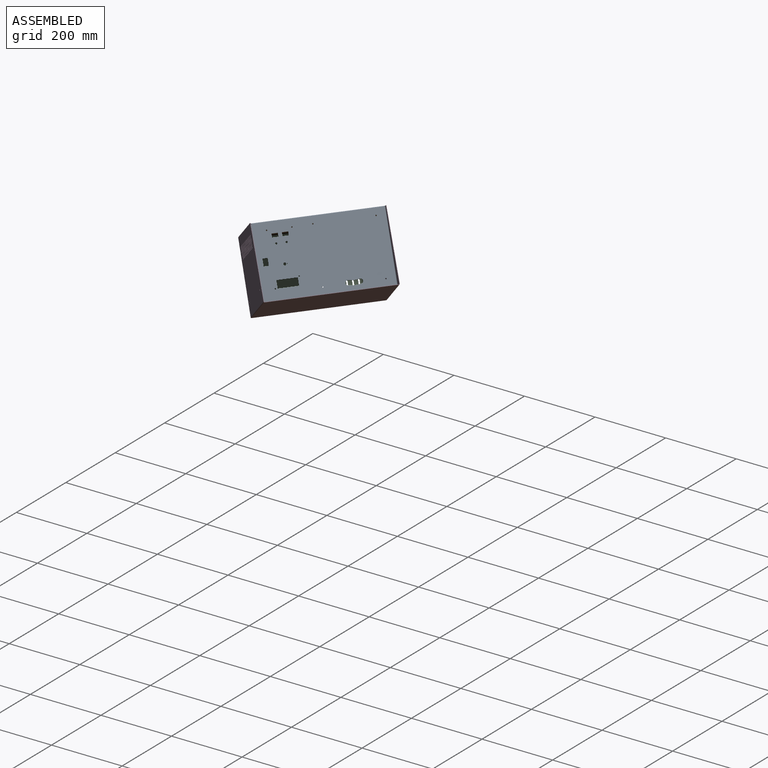
[diagram: assembled view]
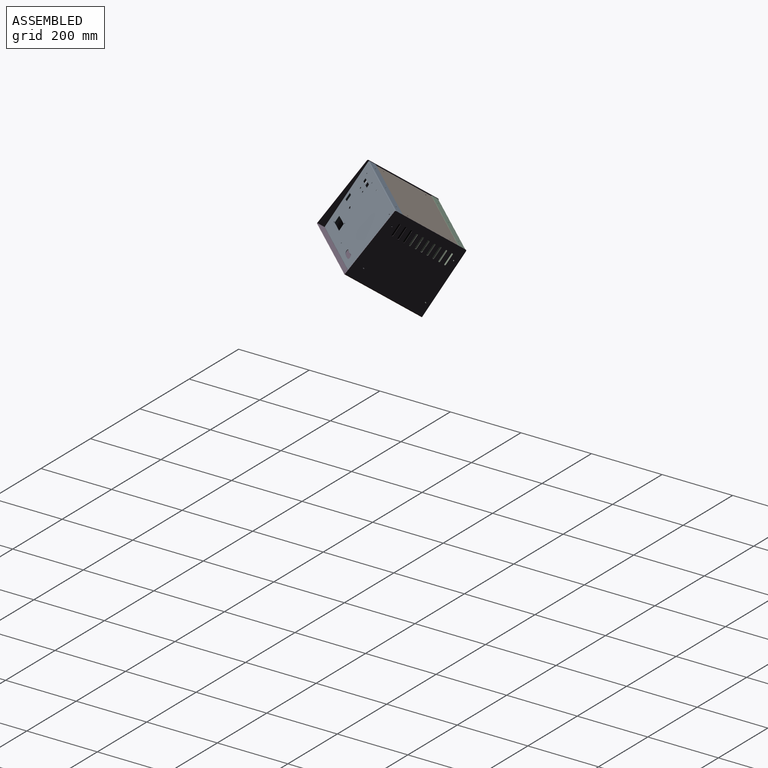
[diagram: assembled view, second angle]
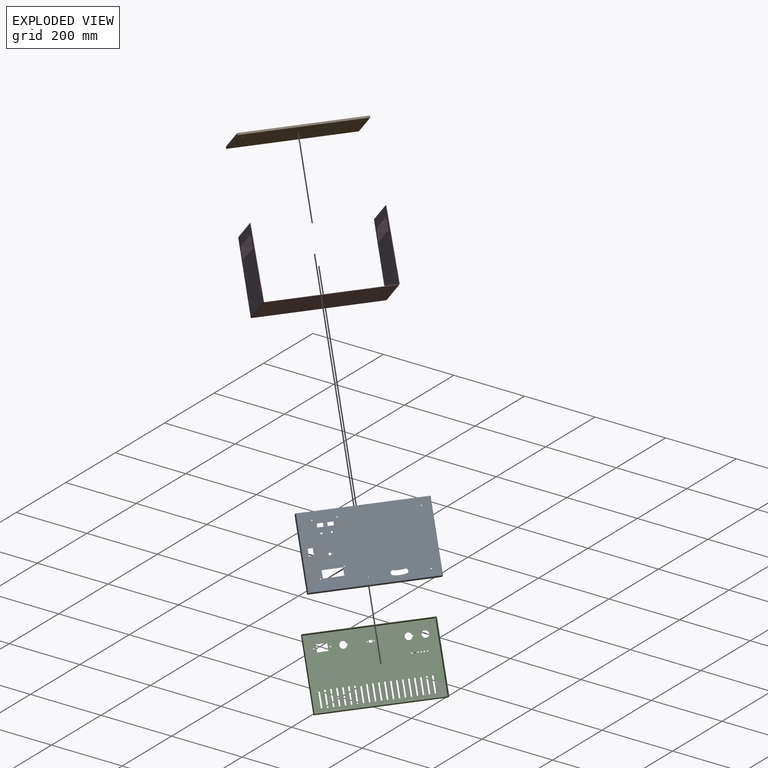
[diagram: exploded view]
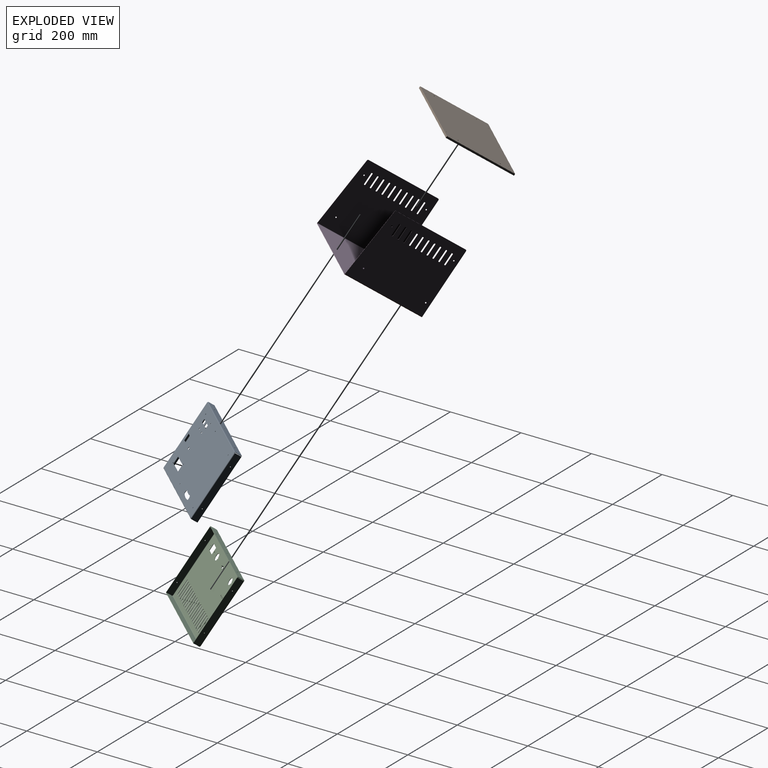
[diagram: exploded view, second angle]
FCSTD DOCUMENT  (FreeCAD 1.0R39109 (Git))
Label: +++Sestava_BEDNY_4D_320mm_5mm
License: All rights reserved
LicenseURL: http://en.wikipedia.org/wiki/All_rights_reserved
objects: App::Link×4, App::FeaturePython×4, Assembly::JointGroup×1, Assembly::AssemblyObject×1
EXTERNAL_REF file=SEVER_BEDNA_PP_320mm_DVE_PACKY.FCStd obj=Body
EXTERNAL_REF file=SEVER_BEDNA_DNO_5mm.FCStd obj=Body
EXTERNAL_REF file=SEVER_BEDNA_ZP_320mm.FCStd obj=Body
EXTERNAL_REF file=SEVER_BEDNA_VRSEK_320mm.FCStd obj=Body

FEATURE [App::Link] Body  label="předek"
  LinkPlacement = pos=(28.0905,79.9433,18.6275) rot=(-0.373711,0.889261,-0.263734;2.86418rad)
  LinkedObject = -> <external SEVER_BEDNA_PP_320mm_DVE_PACKY.FCStd>#Body
  Placement = pos=(28.0905,79.9433,18.6275) rot=(-0.373711,0.889261,-0.263734;2.86418rad)
FEATURE [App::Link] Body001  label="dno 5mm"
  LinkPlacement = pos=(-109.162,126.404,33.6696) rot=(-0.551479,-0.291912,0.781446;0.986831rad)
  LinkedObject = -> <external SEVER_BEDNA_DNO_5mm.FCStd>#Body
  Placement = pos=(-109.162,126.404,33.6696) rot=(-0.551479,-0.291912,0.781446;0.986831rad)
FEATURE [App::FeaturePython] GroundedJoint  # Assembly grounded joint (typed FeaturePython)
  ObjectToGround = -> Body001
  Placement = pos=(-109.162,126.404,33.6696) rot=(-0.551479,-0.291912,0.781446;0.986831rad)
FEATURE [App::FeaturePython] Joint  label="Pevné"  # Assembly joint (typed FeaturePython)
  Activated = true
  AngleMax = 0
  AngleMin = 0
  Detach1 = false
  Detach2 = false
  Distance = 0
  Distance2 = 0
  EnableAngleMax = false
  EnableAngleMin = false
  EnableLengthMax = false
  EnableLengthMin = false
  JointType = 0 (Fixed)
  LengthMax = 0
  LengthMin = 0
  Offset2 = pos=(0,0,0) rot=(0,0,1;3.14159rad)
  Placement1 = pos=(180,9.5,-94) rot=(0,0,1;0rad)
  Placement2 = pos=(-120,-89,5) rot=(0,0,1;3.14159rad)
  Reference1 = -> Assembly [Body.Edge132,Body.Edge132]
  Reference2 = -> Assembly [Body001.Edge23,Body001.Edge23]
FEATURE [App::Link] Body002  label="zadek"
  LinkPlacement = pos=(-12.3072,35.6084,16.4601) rot=(-0.373711,0.889261,-0.263734;2.86418rad)
  LinkedObject = -> <external SEVER_BEDNA_ZP_320mm.FCStd>#Body
  Placement = pos=(-12.3072,35.6084,16.4601) rot=(-0.373711,0.889261,-0.263734;2.86418rad)
FEATURE [App::FeaturePython] Joint001  label="Pevné001"  # Assembly joint (typed FeaturePython)
  Activated = true
  AngleMax = 0
  AngleMin = 0
  Detach1 = false
  Detach2 = false
  Distance = 0
  Distance2 = 0
  EnableAngleMax = false
  EnableAngleMin = false
  EnableLengthMax = false
  EnableLengthMin = false
  JointType = 0 (Fixed)
  LengthMax = 0
  LengthMin = 0
  Offset2 = pos=(0,0,0) rot=(0,0,1;3.14159rad)
  Placement1 = pos=(120,189,-94) rot=(0,0,1;0rad)
  Placement2 = pos=(-120,89,5) rot=(0,0,1;3.14159rad)
  Reference1 = -> Assembly [Body002.Edge330,Body002.Edge330]
  Reference2 = -> Assembly [Body001.Edge29,Body001.Edge29]
FEATURE [App::Link] Body003  label="vršek"
  LinkPlacement = pos=(-22.9234,55.3408,-112.82) rot=(0.912395,0.383433,0.143233;2.61306rad)
  LinkedObject = -> <external SEVER_BEDNA_VRSEK_320mm.FCStd>#Body
  Placement = pos=(-22.9234,55.3408,-112.82) rot=(0.912395,0.383433,0.143233;2.61306rad)
FEATURE [App::FeaturePython] Joint002  label="Pevné002"  # Assembly joint (typed FeaturePython)
  Activated = true
  AngleMax = 0
  AngleMin = 0
  Detach1 = false
  Detach2 = false
  Distance = 0
  Distance2 = 0
  EnableAngleMax = false
  EnableAngleMin = false
  EnableLengthMax = false
  EnableLengthMin = false
  JointType = 0 (Fixed)
  LengthMax = 0
  LengthMin = 0
  Placement1 = pos=(-160.5,-98,-154) rot=(0.57735,-0.57735,-0.57735;2.0944rad)
  Placement2 = pos=(160,188.5,-59) rot=(0.57735,0.57735,0.57735;2.0944rad)
  Reference1 = -> Assembly [Body003.Edge10,Body003.Edge10]
  Reference2 = -> Assembly [Body002.Edge387,Body002.Edge387]
FEATURE [Assembly::JointGroup] Joints
  Group = -> [GroundedJoint,Joint,Joint001,Joint002]
FEATURE [Assembly::AssemblyObject] Assembly
  Group = -> [Joints,Body,Body001,GroundedJoint,Joint,Body002,Joint001,Body003,Joint002]
  Origin = -> Origin
  Type = Assembly

RESOLVED EXTERNAL PARTS (link-assembly join: the EXTERNAL_REF files above that resolve inside this repo's crawl, each included once):
---- part SEVER_BEDNA_DNO_5mm.FCStd = doc fcstd_07ab9bba42f1 ----
FCSTD DOCUMENT  (FreeCAD 1.0R39285 (Git))
Label: SEVER_BEDNA_DNO_5mm
License: All rights reserved
LicenseURL: http://en.wikipedia.org/wiki/All_rights_reserved
objects: TechDraw::DrawViewDimension×11, Sketcher::SketchObject×3, PartDesign::Pocket×2, PartDesign::Pad×1, PartDesign::Body×1, TechDraw::DrawSVGTemplate×1, TechDraw::DrawProjGroupItem×1, TechDraw::DrawPage×1
note: 34 computed .brp shape members not serialized (recipe doc carries the construction recipe); baked Part::Feature solids carry a one-line shape summary decoded from their .brp

FEATURE [Sketcher::SketchObject] Sketch
  ArcFitTolerance = 1e-06
  AttachmentSupport = -> [XY_Plane]
  FullyConstrained = true
  MakeInternals = false
  MapMode = 5
  sketch-geometry (4):
    g0: LineSegment StartX=-157.5 StartY=97 StartZ=0 EndX=-157.5 EndY=-97 EndZ=0
    g1: LineSegment StartX=-157.5 StartY=-97 StartZ=0 EndX=157.5 EndY=-97 EndZ=0
    g2: LineSegment StartX=157.5 StartY=-97 StartZ=0 EndX=157.5 EndY=97 EndZ=0
    g3: LineSegment StartX=157.5 StartY=97 StartZ=0 EndX=-157.5 EndY=97 EndZ=0
  constraints (11):
    c: Coincident(g0,g1)
    c: Coincident(g1,g2)
    c: Coincident(g2,g3)
    c: Coincident(g3,g0)
    c: Vertical(g0)
    c: Vertical(g2)
    c: Horizontal(g1)
    c: Horizontal(g3)
    c: Symmetric(g0,g1,g-1)
    c: DistanceX(g3,g3) = 315
    c: Distance(g0,g0) = 194
FEATURE [PartDesign::Pad] Pad
  Direction = (0,0,1)
  Length = 5
  Length2 = 10
  Profile = -> Sketch
  ReferenceAxis = -> Sketch [N_Axis]
  Suppressed = false
  Type = 0
FEATURE [Sketcher::SketchObject] Sketch001
  ArcFitTolerance = 1e-06
  AttachmentSupport = -> [Pad]
  ExternalGeometry = -> [Pad]
  FullyConstrained = true
  MakeInternals = false
  MapMode = 5
  Placement = pos=(0,0,5) rot=(0,0,1;0rad)
  sketch-geometry (7):
    g0: Circle CenterX=-120 CenterY=89 CenterZ=0 NormalX=0 NormalY=0 NormalZ=1 AngleXU=0 Radius=1
    g1: Circle CenterX=0 CenterY=89 CenterZ=0 NormalX=0 NormalY=0 NormalZ=1 AngleXU=0 Radius=1
    g2: Circle CenterX=120 CenterY=89 CenterZ=0 NormalX=0 NormalY=0 NormalZ=1 AngleXU=0 Radius=1
    g3: Circle CenterX=-120 CenterY=-89 CenterZ=0 NormalX=0 NormalY=0 NormalZ=1 AngleXU=0 Radius=1
    g4: Circle CenterX=0 CenterY=-89 CenterZ=0 NormalX=0 NormalY=0 NormalZ=1 AngleXU=0 Radius=1
    g5: Circle CenterX=120 CenterY=-89 CenterZ=0 NormalX=0 NormalY=0 NormalZ=1 AngleXU=0 Radius=1
    g6: LineSegment [constr] StartX=-157.5 StartY=89 StartZ=0 EndX=157.5 EndY=89 EndZ=0
  constraints (20):
    c: Equal(g0,g1)
    c: Equal(g3,g4)
    c: Equal(g5,g2)
    c: Horizontal(g0,g1)
    c: Horizontal(g4,g3)
    c: Vertical(g4,g1)
    c: Vertical(g2,g5)
    c: Horizontal(g6)
    c: Symmetric(g0,g3,g-1)
    c: DistanceX(g3,g4) = 120
    c: Diameter(g3) = 2
    c: Symmetric(g0,g2,g-2)
    c: PointOnObject(g4,g-2)
    c: Equal(g4,g5)
    c: Equal(g0,g2)
    c: Horizontal(g5,g3)
    c: PointOnObject(g0,g6)
    c: PointOnObject(g6,g-3)
    c: PointOnObject(g6,g-4)
    c: DistanceY(g6,g-3) = 8
FEATURE [PartDesign::Pocket] Pocket
  BaseFeature = -> Pad
  Direction = (0,0,-1)
  Length = 5
  Length2 = 5
  Profile = -> Sketch001
  ReferenceAxis = -> Sketch001 [N_Axis]
  Refine = true
  Suppressed = false
  Type = 1
FEATURE [Sketcher::SketchObject] Sketch002
  ArcFitTolerance = 1e-06
  AttachmentSupport = -> [Pocket]
  FullyConstrained = true
  MakeInternals = false
  MapMode = 5
  Placement = pos=(0,0,5) rot=(0,0,1;0rad)
  sketch-geometry (8):
    g0: Circle CenterX=-140 CenterY=60 CenterZ=0 NormalX=0 NormalY=0 NormalZ=1 AngleXU=0 Radius=2.25
    g1: Circle CenterX=140 CenterY=60 CenterZ=0 NormalX=0 NormalY=0 NormalZ=1 AngleXU=0 Radius=2.25
    g2: Circle CenterX=-140 CenterY=-60 CenterZ=0 NormalX=0 NormalY=0 NormalZ=1 AngleXU=0 Radius=2.25
    g3: Circle CenterX=140 CenterY=-60 CenterZ=0 NormalX=0 NormalY=0 NormalZ=1 AngleXU=0 Radius=2.25
    g4: Circle [constr] CenterX=-140 CenterY=60 CenterZ=0 NormalX=0 NormalY=0 NormalZ=1 AngleXU=0 Radius=10
    g5: Circle [constr] CenterX=-140 CenterY=-60 CenterZ=0 NormalX=0 NormalY=0 NormalZ=1 AngleXU=0 Radius=10
    g6: Circle [constr] CenterX=140 CenterY=60 CenterZ=0 NormalX=0 NormalY=0 NormalZ=1 AngleXU=0 Radius=10
    g7: Circle [constr] CenterX=140 CenterY=-60 CenterZ=0 NormalX=0 NormalY=0 NormalZ=1 AngleXU=0 Radius=10
  constraints (18):
    c: Symmetric(g0,g2,g-1)
    c: Symmetric(g0,g1,g-2)
    c: Horizontal(g3,g2)
    c: Vertical(g1,g3)
    c: Equal(g0,g2)
    c: Equal(g2,g1)
    c: Equal(g1,g3)
    c: DistanceY(g2,g0) = 120
    c: DistanceX(g0,g1) = 280
    c: Diameter(g0) = 4.5
    c: Coincident(g4,g0)
    c: Diameter(g4) = 20
    c: Coincident(g5,g2)
    c: Coincident(g6,g1)
    c: Coincident(g7,g3)
    c: Equal(g4,g5)
    c: Equal(g5,g6)
    c: Equal(g6,g7)
FEATURE [PartDesign::Pocket] Pocket001
  BaseFeature = -> Pocket
  Direction = (0,0,-1)
  Length = 5
  Length2 = 5
  Profile = -> Sketch002
  ReferenceAxis = -> Sketch002 [N_Axis]
  Refine = true
  Suppressed = false
  Type = 1
FEATURE [PartDesign::Body] Body
  AllowCompound = false
  Group = -> [Sketch,Pad,Sketch001,Sketch002,Pocket,Pocket001]
  Origin = -> Origin
  Tip = -> Pocket001
FEATURE [TechDraw::DrawSVGTemplate] Template001  label="Šablona001"
  Height = 297
  Orientation = 1
  Template = <userpath>/AppData/FreeCAD_1.0.0-conda-Windows-x86_64-py311/data/Mod/TechDraw/Templates/A3_Landscape_blank.svg
  Width = 420
FEATURE [TechDraw::DrawProjGroupItem] View
  CoarseView = false
  Direction = (0,0,-1)
  Focus = 100
  HardHidden = false
  IsoCount = 0
  IsoHidden = false
  IsoVisible = false
  LockPosition = false
  Perspective = false
  Rotation = 0
  RotationVector = (1,0,0)
  ScaleType = 0
  ScrubCount = 1
  SeamHidden = false
  SeamVisible = false
  SmoothHidden = false
  SmoothVisible = true
  Source = -> [Body]
  Type = 0
  X = 215.134
  XDirection = (1,0,0)
  Y = 125.201
FEATURE [TechDraw::DrawViewDimension] Dimension  label="Rozměr"
  AngleOverride = false
  Arbitrary = false
  ArbitraryTolerances = false
  BoxCorners = (2) [(-157.5,-97,0),(157.5,97,0)]
  EqualTolerance = true
  ExtensionAngle = 0
  FormatSpec = %.2w
  FormatSpecOverTolerance = %+.2w
  FormatSpecUnderTolerance = %+.2w
  Inverted = false
  LineAngle = 0
  LockPosition = false
  MeasureType = 1
  OverTolerance = 0
  References2D = -> [View]
  Rotation = 0
  ScaleType = 0
  TheoreticalExact = false
  Type = 1
  UnderTolerance = 0
  X = 0
  Y = 155.045
FEATURE [TechDraw::DrawViewDimension] Dimension001  label="Rozměr001"
  AngleOverride = false
  Arbitrary = false
  ArbitraryTolerances = false
  BoxCorners = (2) [(-157.5,-97,0),(157.5,97,0)]
  EqualTolerance = true
  ExtensionAngle = 0
  FormatSpec = %.2w
  FormatSpecOverTolerance = %+.2w
  FormatSpecUnderTolerance = %+.2w
  Inverted = false
  LineAngle = 0
  LockPosition = false
  MeasureType = 1
  OverTolerance = 0
  References2D = -> [View]
  Rotation = 0
  ScaleType = 0
  TheoreticalExact = false
  Type = 2
  UnderTolerance = 0
  X = -193.419
  Y = 0
FEATURE [TechDraw::DrawViewDimension] Dimension002  label="Rozměr002"
  AngleOverride = false
  Arbitrary = false
  ArbitraryTolerances = false
  BoxCorners = (2) [(-157.5,-97,0),(157.5,97,0)]
  EqualTolerance = true
  ExtensionAngle = 0
  FormatSpec = %.2w
  FormatSpecOverTolerance = %+.2w
  FormatSpecUnderTolerance = %+.2w
  Inverted = false
  LineAngle = 0
  LockPosition = false
  MeasureType = 1
  OverTolerance = 0
  References2D = -> [View]
  Rotation = 0
  ScaleType = 0
  TheoreticalExact = false
  Type = 1
  UnderTolerance = 0
  X = -60
  Y = 114.567
FEATURE [TechDraw::DrawViewDimension] Dimension003  label="Rozměr003"
  AngleOverride = false
  Arbitrary = false
  ArbitraryTolerances = false
  BoxCorners = (2) [(-157.5,-97,0),(157.5,97,0)]
  EqualTolerance = true
  ExtensionAngle = 0
  FormatSpec = %.2w
  FormatSpecOverTolerance = %+.2w
  FormatSpecUnderTolerance = %+.2w
  Inverted = false
  LineAngle = 0
  LockPosition = false
  MeasureType = 1
  OverTolerance = 0
  References2D = -> [View]
  Rotation = 0
  ScaleType = 0
  TheoreticalExact = false
  Type = 1
  UnderTolerance = 0
  X = 54.5624
  Y = 114.567
FEATURE [TechDraw::DrawViewDimension] Dimension004  label="Rozměr004"
  AngleOverride = false
  Arbitrary = false
  ArbitraryTolerances = false
  BoxCorners = (2) [(-157.5,-97,0),(157.5,97,0)]
  EqualTolerance = true
  ExtensionAngle = 0
  FormatSpec = %.2w
  FormatSpecOverTolerance = %+.2w
  FormatSpecUnderTolerance = %+.2w
  Inverted = false
  LineAngle = 0
  LockPosition = false
  MeasureType = 1
  OverTolerance = 0
  References2D = -> [View]
  Rotation = 0
  ScaleType = 0
  TheoreticalExact = false
  Type = 1
  UnderTolerance = 0
  X = 0
  Y = 31.1919
FEATURE [TechDraw::DrawViewDimension] Dimension007  label="Rozměr007"
  AngleOverride = false
  Arbitrary = true
  ArbitraryTolerances = false
  BoxCorners = (2) [(-157.5,-97,0),(157.5,97,0)]
  EqualTolerance = true
  ExtensionAngle = 0
  FormatSpec = 6x M3
  FormatSpecOverTolerance = %+.2w
  FormatSpecUnderTolerance = %+.2w
  Inverted = false
  LineAngle = 0
  LockPosition = false
  MeasureType = 1
  OverTolerance = 0
  References2D = -> [View]
  Rotation = 0
  ScaleType = 0
  TheoreticalExact = false
  Type = 5
  UnderTolerance = 0
  X = 88.9416
  Y = 84.6774
FEATURE [TechDraw::DrawViewDimension] Dimension008  label="Rozměr008"
  AngleOverride = false
  Arbitrary = true
  ArbitraryTolerances = false
  BoxCorners = (2) [(-157.5,-97,0),(157.5,97,0)]
  EqualTolerance = true
  ExtensionAngle = 0
  FormatSpec = 4x M4
  FormatSpecOverTolerance = %+.2w
  FormatSpecUnderTolerance = %+.2w
  Inverted = false
  LineAngle = 0
  LockPosition = false
  MeasureType = 1
  OverTolerance = 0
  References2D = -> [View]
  Rotation = 0
  ScaleType = 0
  TheoreticalExact = false
  Type = 5
  UnderTolerance = 0
  X = 100.518
  Y = 50.5803
FEATURE [TechDraw::DrawViewDimension] Dimension009  label="Rozměr009"
  AngleOverride = false
  Arbitrary = false
  ArbitraryTolerances = false
  BoxCorners = (2) [(-157.5,-97,0),(157.5,97,0)]
  EqualTolerance = true
  ExtensionAngle = 0
  FormatSpec = %.2w
  FormatSpecOverTolerance = %+.2w
  FormatSpecUnderTolerance = %+.2w
  Inverted = false
  LineAngle = 0
  LockPosition = false
  MeasureType = 1
  OverTolerance = 0
  References2D = -> [View]
  Rotation = 0
  ScaleType = 0
  TheoreticalExact = false
  Type = 0
  UnderTolerance = 0
  X = -170.244
  Y = 93
FEATURE [TechDraw::DrawViewDimension] Dimension010  label="Rozměr010"
  AngleOverride = false
  Arbitrary = false
  ArbitraryTolerances = false
  BoxCorners = (2) [(-157.5,-97,0),(157.5,97,0)]
  EqualTolerance = true
  ExtensionAngle = 0
  FormatSpec = %.2w
  FormatSpecOverTolerance = %+.2w
  FormatSpecUnderTolerance = %+.2w
  Inverted = false
  LineAngle = 0
  LockPosition = false
  MeasureType = 1
  OverTolerance = 0
  References2D = -> [View]
  Rotation = 0
  ScaleType = 0
  TheoreticalExact = false
  Type = 0
  UnderTolerance = 0
  X = -179.841
  Y = 78.5
FEATURE [TechDraw::DrawViewDimension] Dimension011  label="Rozměr011"
  AngleOverride = false
  Arbitrary = false
  ArbitraryTolerances = false
  BoxCorners = (2) [(-157.5,-97,0),(157.5,97,0)]
  EqualTolerance = true
  ExtensionAngle = 0
  FormatSpec = %.2w
  FormatSpecOverTolerance = %+.2w
  FormatSpecUnderTolerance = %+.2w
  Inverted = false
  LineAngle = 0
  LockPosition = false
  MeasureType = 1
  OverTolerance = 0
  References2D = -> [View]
  Rotation = 0
  ScaleType = 0
  TheoreticalExact = false
  Type = 0
  UnderTolerance = 0
  X = -57.0655
  Y = 135.635
FEATURE [TechDraw::DrawViewDimension] Dimension012  label="Rozměr012"
  AngleOverride = false
  Arbitrary = false
  ArbitraryTolerances = false
  BoxCorners = (2) [(-157.5,-97,0),(157.5,97,0)]
  EqualTolerance = true
  ExtensionAngle = 0
  FormatSpec = %.2w
  FormatSpecOverTolerance = %+.2w
  FormatSpecUnderTolerance = %+.2w
  Inverted = false
  LineAngle = 0
  LockPosition = false
  MeasureType = 1
  OverTolerance = 0
  References2D = -> [View]
  Rotation = 0
  ScaleType = 0
  TheoreticalExact = false
  Type = 0
  UnderTolerance = 0
  X = 65.3695
  Y = 135.635
FEATURE [TechDraw::DrawPage] Page001  label="Stránka001"
  KeepUpdated = true
  NextBalloonIndex = 1
  ProjectionType = 0
  Template = -> Template001
  Views = -> [View,Dimension,Dimension001,Dimension002,Dimension003,Dimension004,Dimension007,Dimension008,Dimension009,Dimension010,Dimension011,Dimension012]
---- part SEVER_BEDNA_PP_320mm_DVE_PACKY.FCStd = doc fcstd_56e4bdcb5f2a ----
FCSTD DOCUMENT  (FreeCAD 1.0R39285 (Git))
Label: SEVER_BEDNA_PP_320mm_DVE_PACKY
License: All rights reserved
LicenseURL: http://en.wikipedia.org/wiki/All_rights_reserved
objects: Sketcher::SketchObject×3, PartDesign::FeaturePython×3, PartDesign::Pocket×2, PartDesign::Pad×1, TechDraw::DrawSVGTemplate×1, TechDraw::DrawProjGroupItem×1, TechDraw::DrawPage×1, Image::ImagePlane×1, PartDesign::Body×1
note: 22 computed .brp shape members not serialized (recipe doc carries the construction recipe); baked Part::Feature solids carry a one-line shape summary decoded from their .brp

FEATURE [Sketcher::SketchObject] Sketch
  ArcFitTolerance = 1e-06
  AttachmentSupport = -> [XZ_Plane001]
  FullyConstrained = true
  MakeInternals = false
  MapMode = 5
  Placement = pos=(0,0,0) rot=(1,0,0;1.5708rad)
  sketch-geometry (48):
    g0: LineSegment [constr] StartX=-90 StartY=70 StartZ=0 EndX=-90 EndY=-70 EndZ=0
    g1: LineSegment [constr] StartX=-70 StartY=-90 StartZ=0 EndX=70 EndY=-90 EndZ=0
    g2: LineSegment [constr] StartX=90 StartY=-70 StartZ=0 EndX=90 EndY=70 EndZ=0
    g3: LineSegment [constr] StartX=70 StartY=90 StartZ=0 EndX=-70 EndY=90 EndZ=0
    g4: ArcOfCircle [constr] CenterX=-70 CenterY=70 CenterZ=0 NormalX=0 NormalY=0 NormalZ=1 AngleXU=0 Radius=20 StartAngle=1.5708 EndAngle=3.14159
    g5: ArcOfCircle [constr] CenterX=-70 CenterY=-70 CenterZ=0 NormalX=0 NormalY=0 NormalZ=1 AngleXU=0 Radius=20 StartAngle=3.14159 EndAngle=4.71239
    g6: ArcOfCircle [constr] CenterX=70 CenterY=-70 CenterZ=0 NormalX=0 NormalY=0 NormalZ=1 AngleXU=0 Radius=20 StartAngle=4.71239 EndAngle=6.28319
    g7: ArcOfCircle [constr] CenterX=70 CenterY=70 CenterZ=0 NormalX=0 NormalY=0 NormalZ=1 AngleXU=0 Radius=20 StartAngle=0 EndAngle=1.5708
    g8: GeomPoint [constr] X=-90 Y=90 Z=0
    g9: GeomPoint [constr] X=90 Y=-90 Z=0
    g10: Circle CenterX=-75 CenterY=75 CenterZ=0 NormalX=0 NormalY=0 NormalZ=1 AngleXU=0 Radius=1.6
    g11: Circle CenterX=75 CenterY=75 CenterZ=0 NormalX=0 NormalY=0 NormalZ=1 AngleXU=0 Radius=1.6
    g12: Circle CenterX=75 CenterY=-75 CenterZ=0 NormalX=0 NormalY=0 NormalZ=1 AngleXU=0 Radius=1.6
    g13: Circle CenterX=-75 CenterY=-75 CenterZ=0 NormalX=0 NormalY=0 NormalZ=1 AngleXU=0 Radius=1.6
    g14: LineSegment StartX=-100 StartY=95 StartZ=0 EndX=-100 EndY=-95 EndZ=0
    g15: LineSegment StartX=-100 StartY=-95 StartZ=0 EndX=220 EndY=-95 EndZ=0
    g16: LineSegment StartX=220 StartY=-95 StartZ=0 EndX=220 EndY=95 EndZ=0
    g17: LineSegment StartX=220 StartY=95 StartZ=0 EndX=-100 EndY=95 EndZ=0
    g18: ArcOfCircle CenterX=0 CenterY=0 CenterZ=0 NormalX=0 NormalY=0 NormalZ=1 AngleXU=0 Radius=80.5 StartAngle=1.36807 EndAngle=1.77352
    g19: ArcOfCircle CenterX=15 CenterY=72.9743 CenterZ=0 NormalX=0 NormalY=0 NormalZ=1 AngleXU=0 Radius=6 StartAngle=4.50966 EndAngle=7.65125
    g20: ArcOfCircle CenterX=-15 CenterY=72.9743 CenterZ=0 NormalX=0 NormalY=0 NormalZ=1 AngleXU=0 Radius=6 StartAngle=1.77352 EndAngle=4.91512
    g21: ArcOfCircle CenterX=0 CenterY=0 CenterZ=0 NormalX=0 NormalY=0 NormalZ=1 AngleXU=0 Radius=68.5 StartAngle=1.36807 EndAngle=1.77352
    g22: LineSegment [constr] StartX=155 StartY=-95 StartZ=0 EndX=155 EndY=95 EndZ=0
    g23: LineSegment StartX=129.5 StartY=65 StartZ=0 EndX=129.5 EndY=45 EndZ=0
    g24: LineSegment StartX=129.5 StartY=45 StartZ=0 EndX=180.5 EndY=45 EndZ=0
    g25: LineSegment StartX=180.5 StartY=45 StartZ=0 EndX=180.5 EndY=65 EndZ=0
    g26: LineSegment StartX=180.5 StartY=65 StartZ=0 EndX=129.5 EndY=65 EndZ=0
    g27: Circle CenterX=155 CenterY=10 CenterZ=0 NormalX=0 NormalY=0 NormalZ=1 AngleXU=0 Radius=3.5
    g28: Circle CenterX=142.65 CenterY=-40.5 CenterZ=0 NormalX=0 NormalY=0 NormalZ=1 AngleXU=0 Radius=2.5
    g29: Circle CenterX=167.35 CenterY=-40.5 CenterZ=0 NormalX=0 NormalY=0 NormalZ=1 AngleXU=0 Radius=2.5
    g30: LineSegment StartX=192.7 StartY=9.3 StartZ=0 EndX=192.7 EndY=-9.3 EndZ=0
    g31: LineSegment StartX=192.7 StartY=-9.3 StartZ=0 EndX=205 EndY=-9.3 EndZ=0
    g32: LineSegment StartX=205 StartY=-9.3 StartZ=0 EndX=205 EndY=9.3 EndZ=0
    g33: LineSegment StartX=205 StartY=9.3 StartZ=0 EndX=192.7 EndY=9.3 EndZ=0
    g34: Circle CenterX=149 CenterY=10 CenterZ=0 NormalX=0 NormalY=0 NormalZ=1 AngleXU=0 Radius=1
    g35: Circle CenterX=126 CenterY=42.5 CenterZ=0 NormalX=0 NormalY=0 NormalZ=1 AngleXU=0 Radius=1.6
    g36: Circle CenterX=186 CenterY=65 CenterZ=0 NormalX=0 NormalY=0 NormalZ=1 AngleXU=0 Radius=1.6
    g37: LineSegment StartX=135.15 StartY=-55.5 StartZ=0 EndX=135.15 EndY=-65 EndZ=0
    g38: LineSegment StartX=135.15 StartY=-65 StartZ=0 EndX=150.15 EndY=-65 EndZ=0
    g39: LineSegment StartX=150.15 StartY=-65 StartZ=0 EndX=150.15 EndY=-55.5 EndZ=0
    g40: LineSegment StartX=150.15 StartY=-55.5 StartZ=0 EndX=135.15 EndY=-55.5 EndZ=0
    g41: LineSegment StartX=159.85 StartY=-55.5 StartZ=0 EndX=159.85 EndY=-65 EndZ=0
    g42: LineSegment StartX=159.85 StartY=-65 StartZ=0 EndX=174.85 EndY=-65 EndZ=0
    g43: LineSegment StartX=174.85 StartY=-65 StartZ=0 EndX=174.85 EndY=-55.5 EndZ=0
    g44: LineSegment StartX=174.85 StartY=-55.5 StartZ=0 EndX=159.85 EndY=-55.5 EndZ=0
    g45: GeomPoint [constr] X=142.65 Y=-55.5 Z=0
    g46: Circle CenterX=125 CenterY=-74 CenterZ=0 NormalX=0 NormalY=0 NormalZ=1 AngleXU=0 Radius=1.6
    g47: Circle CenterX=185 CenterY=-74 CenterZ=0 NormalX=0 NormalY=0 NormalZ=1 AngleXU=0 Radius=1.6
  constraints (127):
    c: Tangent(g0,g4) = -1.5708
    c: Tangent(g0,g5) = -1.5708
    c: Tangent(g1,g5) = -1.5708
    c: Tangent(g1,g6) = -1.5708
    c: Tangent(g2,g6) = -1.5708
    c: Tangent(g2,g7) = -1.5708
    c: Tangent(g3,g7) = -1.5708
    c: Tangent(g3,g4) = -1.5708
    c: Vertical(g0)
    c: Vertical(g2)
    c: Horizontal(g1)
    c: Horizontal(g3)
    c: Equal(g4,g5)
    c: Equal(g5,g6)
    c: Equal(g6,g7)
    c: PointOnObject(g8,g0)
    c: PointOnObject(g8,g3)
    c: PointOnObject(g9,g1)
    c: PointOnObject(g9,g2)
    c: Symmetric(g4,g6,g-1)
    c: Distance(g2,g0) = 180
    c: Radius(g4) = 20
    c: Equal(g1,g0)
    c: Equal(g10,g11)
    c: Equal(g11,g12)
    c: Equal(g12,g13)
    c: Diameter(g10) = 3.2
    c: Symmetric(g10,g11,g-2)
    c: Symmetric(g10,g13,g-1)
    c: Symmetric(g13,g12,g-2)
    c: DistanceX(g10,g11) = 150
    c: DistanceY(g13,g10) = 150
    c: Coincident(g14,g15)
    c: Coincident(g15,g16)
    c: Coincident(g16,g17)
    c: Coincident(g17,g14)
    c: Vertical(g16)
    c: Horizontal(g15)
    c: Horizontal(g17)
    c: DistanceY(g14,g14) = 190
    c: Symmetric(g14,g14,g-1)
    c: Distance(g0,g14) = 10
    c: Distance(g16,g2) = 130
    c: DistanceX(g15,g15) = 320
    c: Coincident(g18,g21)
    c: Tangent(g21,g20) = 1.5708
    c: Tangent(g21,g19) = 1.5708
    c: Tangent(g18,g20) = -1.5708
    c: Tangent(g18,g19) = -1.5708
    c: Coincident(g18,g-1)
    c: Distance(g19,g18) = 74.5
    c: Radius(g20) = 6
    c: Distance(g20,g-2) = 15
    c: Distance(g19,g-2) = 15
    c: PointOnObject(g22,g15)
    c: PointOnObject(g22,g17)
    c: Vertical(g22)
    c: Distance(g16,g22) = 65
    c: Coincident(g23,g24)
    c: Coincident(g24,g25)
    c: Coincident(g25,g26)
    c: Coincident(g26,g23)
    c: Vertical(g23)
    c: Vertical(g25)
    c: Horizontal(g24)
    c: Distance(g23,g25) = 51
    c: Distance(g24,g26) = 20
    c: Symmetric(g23,g25,g22)
    c: Distance(g17,g26) = 30
    c: Diameter(g27) = 7
    c: PointOnObject(g27,g22)
    c: Distance(g27,g24) = 35
    c: Equal(g28,g29)
    c: Diameter(g28) = 5
    c: Symmetric(g28,g29,g22)
    c: DistanceX(g28,g29) = 24.7
    c: Coincident(g30,g31)
    c: Coincident(g31,g32)
    c: Coincident(g32,g33)
    c: Coincident(g33,g30)
    c: Vertical(g30)
    c: Horizontal(g31)
    c: Horizontal(g33)
    c: DistanceX(g33,g33) = 12.3
    c: DistanceY(g30,g30) = 18.6
    c: Symmetric(g32,g31,g-1)
    c: Diameter(g34) = 2
    c: Distance(g34,g22) = 6
    c: DistanceY(g35,g36) = 22.5
    c: DistanceX(g35,g36) = 60
    c: Equal(g35,g36)
    c: Diameter(g35) = 3.2
    c: Distance(g36,g25) = 5.5
    c: Horizontal(g34,g27)
    c: Distance(g31,g16) = 15
    c: Coincident(g37,g38)
    c: Coincident(g38,g39)
    c: Coincident(g39,g40)
    c: Coincident(g40,g37)
    c: Vertical(g37)
    c: Vertical(g39)
    c: Horizontal(g38)
    c: Horizontal(g40)
    c: Coincident(g41,g42)
    c: Coincident(g42,g43)
    c: Coincident(g43,g44)
    c: Coincident(g44,g41)
    c: Vertical(g41)
    c: Vertical(g43)
    c: Horizontal(g42)
    c: Horizontal(g44)
    c: Equal(g40,g44)
    c: Equal(g39,g41)
    c: DistanceY(g37,g37) = 9.5
    c: DistanceX(g40,g40) = 15
    c: Symmetric(g39,g41,g22)
    c: DistanceY(g43,g29) = 15
    c: Distance(g42,g15) = 30
    c: Symmetric(g40,g40,g45)
    c: Vertical(g28,g45)
    c: DistanceX(g38,g41) = 9.7
    c: Symmetric(g46,g47,g22)
    c: DistanceX(g46,g47) = 60
    c: Equal(g46,g47)
    c: Diameter(g46) = 3.2
    c: DistanceY(g47,g42) = 9
    c: PointOnObject(g36,g26)
FEATURE [PartDesign::Pad] Pad
  Direction = (0,-1,2e-16)
  Length = 1
  Length2 = 10
  Placement = pos=(0,0,0) rot=(1,0,0;1.5708rad)
  Profile = -> Sketch
  ReferenceAxis = -> Sketch [N_Axis]
  Suppressed = false
  Type = 0
FEATURE [PartDesign::FeaturePython] Bend  # WARN: FeaturePython — macro-defined, semantics opaque (R4)
  AngleFaceRefMode = false
  AutoMiter = false
  BaseFeature = -> Pad
  BendType = 1
  LengthList = [20]
  LengthSpec = 1
  NonperforationMaxLength = 5
  OffsetFaceRefMode = false
  OffsetType = 1
  OffsetTypeOffset = 0
  Perforate = false
  PerforationAngle = 0
  PerforationInitialLength = 5
  PerforationMaxLength = 5
  RelativeAngleToRef = 0
  ReliefFactor = 0.7
  SupplAngleRef = false
  Suppressed = false
  UseReliefFactor = false
  angle = 90
  baseObject = -> Pad [Edge7]
  bendAList = [90]
  extend1 = 0
  extend2 = 0
  gap1 = 0
  gap2 = 0
  invert = true
  kfactor = 0.5
  length = 20
  maxExtendDist = 5
  minGap = 0.2
  minReliefGap = 1
  miterangle1 = 0
  miterangle2 = 0
  offset = 0
  radius = 1
  reliefType = 0
  reliefd = 1
  reliefw = 0.8
  sketchflip = false
  sketchinvert = false
  unfold = false
FEATURE [PartDesign::FeaturePython] Bend001  # WARN: FeaturePython — macro-defined, semantics opaque (R4)
  AngleFaceRefMode = false
  AutoMiter = false
  BaseFeature = -> Bend
  BendType = 1
  LengthList = [20]
  LengthSpec = 1
  NonperforationMaxLength = 5
  OffsetFaceRefMode = false
  OffsetType = 1
  OffsetTypeOffset = 0
  Perforate = false
  PerforationAngle = 0
  PerforationInitialLength = 5
  PerforationMaxLength = 5
  RelativeAngleToRef = 0
  ReliefFactor = 0.7
  SupplAngleRef = false
  Suppressed = false
  UseReliefFactor = false
  angle = 90
  baseObject = -> Bend [Edge6,Edge1]
  bendAList = [90]
  extend1 = 0
  extend2 = 0
  gap1 = 0
  gap2 = 0
  invert = false
  kfactor = 0.5
  length = 20
  maxExtendDist = 5
  minGap = 0.2
  minReliefGap = 1
  miterangle1 = 0
  miterangle2 = 0
  offset = 0
  radius = 1
  reliefType = 0
  reliefd = 1
  reliefw = 0.8
  sketchflip = false
  sketchinvert = false
  unfold = false
FEATURE [Sketcher::SketchObject] Sketch001
  ArcFitTolerance = 1e-06
  AttachmentSupport = -> [Bend001]
  ExternalGeometry = -> [Bend001]
  FullyConstrained = true
  MakeInternals = false
  MapMode = 5
  Placement = pos=(0,0,-94) rot=(0,0,1;0rad)
  sketch-geometry (6):
    g0: Circle CenterX=60 CenterY=9.5 CenterZ=0 NormalX=0 NormalY=0 NormalZ=1 AngleXU=0 Radius=1.6
    g1: Circle CenterX=-60 CenterY=9.5 CenterZ=0 NormalX=0 NormalY=0 NormalZ=1 AngleXU=0 Radius=1.6
    g2: Circle CenterX=180 CenterY=9.5 CenterZ=0 NormalX=0 NormalY=0 NormalZ=1 AngleXU=0 Radius=1.6
    g3: LineSegment [constr] StartX=60 StartY=19 StartZ=0 EndX=60 EndY=1 EndZ=0
    g4: LineSegment [constr] StartX=-140 StartY=9.5 StartZ=0 EndX=260 EndY=9.5 EndZ=0
    g5: GeomPoint [constr] X=60 Y=9.5 Z=0
  constraints (14):
    c: Equal(g0,g1)
    c: Equal(g1,g2)
    c: DistanceX(g1,g0) = 120
    c: Diameter(g1) = 3.2
    c: Symmetric(g-4,g-4,g3)
    c: Symmetric(g-3,g-3,g3)
    c: Horizontal(g4)
    c: Symmetric(g4,g4,g5)
    c: PointOnObject(g1,g4)
    c: Symmetric(g1,g2,g3)
    c: DistanceX(g4,g4) = 400
    c: PointOnObject(g5,g3)
    c: Distance(g-3,g4) = 8.5
    c: Coincident(g0,g5)
FEATURE [PartDesign::Pocket] Pocket
  BaseFeature = -> Bend001
  Direction = (0,0,-1)
  Length = 5
  Length2 = 5
  Profile = -> Sketch001
  ReferenceAxis = -> Sketch001 [N_Axis]
  Suppressed = false
  Type = 1
FEATURE [TechDraw::DrawSVGTemplate] Template  label="Šablona"
  Height = 297
  Orientation = 1
  Template = C:/Program Files/FreeCAD 1.0/data/Mod/TechDraw/Templates/A3_Landscape_blank.svg
  Width = 420
FEATURE [TechDraw::DrawProjGroupItem] View
  CoarseView = false
  Direction = (0,-1,0)
  Focus = 100
  HardHidden = false
  IsoCount = 0
  IsoHidden = false
  IsoVisible = false
  LockPosition = false
  Perspective = false
  Rotation = 0
  RotationVector = (1,0,0)
  ScaleType = 0
  ScrubCount = 1
  SeamHidden = false
  SeamVisible = false
  SmoothHidden = false
  SmoothVisible = true
  Source = -> [Sketch]
  Type = 0
  X = 210.159
  XDirection = (1,0,0)
  Y = 158.358
FEATURE [TechDraw::DrawPage] Page  label="Stránka"
  KeepUpdated = true
  NextBalloonIndex = 1
  ProjectionType = 0
  Template = -> Template
  Views = -> [View]
FEATURE [Sketcher::SketchObject] Sketch002
  ArcFitTolerance = 1e-06
  AttachmentSupport = -> [Pocket]
  ExternalGeometry = -> [Pocket]
  FullyConstrained = true
  MakeInternals = false
  MapMode = 5
  Placement = pos=(220,0,4.84e-14) rot=(0.57735,0.57735,0.57735;2.0944rad)
  sketch-geometry (4):
    g0: Circle CenterX=10 CenterY=61 CenterZ=0 NormalX=0 NormalY=0 NormalZ=1 AngleXU=0 Radius=1
    g1: Circle CenterX=10 CenterY=-59 CenterZ=0 NormalX=0 NormalY=0 NormalZ=1 AngleXU=0 Radius=1
    g2: LineSegment [constr] StartX=10 StartY=95 StartZ=0 EndX=10 EndY=-93 EndZ=0
    g3: GeomPoint [constr] X=10 Y=1 Z=0
  constraints (8):
    c: DistanceY(g1,g0) = 120
    c: Equal(g0,g1)
    c: Diameter(g0) = 2
    c: Symmetric(g-3,g-3,g2)
    c: Symmetric(g-4,g-4,g2)
    c: Symmetric(g2,g2,g3)
    c: Symmetric(g1,g0,g3)
    c: PointOnObject(g0,g2)
FEATURE [PartDesign::Pocket] Pocket001
  BaseFeature = -> Pocket
  Direction = (-1,0,0)
  Length = 5
  Length2 = 5
  Profile = -> Sketch002
  ReferenceAxis = -> Sketch002 [N_Axis]
  Suppressed = false
  Type = 1
FEATURE [Image::ImagePlane] p__edn___panel_2TL  label="přední panel 2TL"
  Placement = pos=(60,-2,0) rot=(1,0,0;1.5708rad)
  XSize = 320.76
  YSize = 190.754
FEATURE [PartDesign::FeaturePython] Bend002  # WARN: FeaturePython — macro-defined, semantics opaque (R4)
  AngleFaceRefMode = false
  AutoMiter = false
  BaseFeature = -> Pocket001
  BendType = 1
  LengthList = [20]
  LengthSpec = 1
  NonperforationMaxLength = 5
  OffsetFaceRefMode = false
  OffsetType = 1
  OffsetTypeOffset = 0
  Perforate = false
  PerforationAngle = 0
  PerforationInitialLength = 5
  PerforationMaxLength = 5
  RelativeAngleToRef = 0
  ReliefFactor = 0.7
  SupplAngleRef = false
  Suppressed = false
  UseReliefFactor = false
  angle = 90
  baseObject = -> Pocket001 [Edge4]
  bendAList = [90]
  extend1 = 0
  extend2 = 0
  gap1 = 0
  gap2 = 0
  invert = false
  kfactor = 0.5
  length = 20
  maxExtendDist = 5
  minGap = 0.2
  minReliefGap = 1
  miterangle1 = 0
  miterangle2 = 0
  offset = 0
  radius = 1
  reliefType = 0
  reliefd = 1
  reliefw = 0.8
  sketchflip = false
  sketchinvert = false
  unfold = false
FEATURE [PartDesign::Body] Body
  AllowCompound = false
  Group = -> [Sketch,Pad,Bend,Bend001,Sketch001,Pocket,Sketch002,Pocket001,Bend002]
  Origin = -> Origin001
  Tip = -> Bend002
---- part SEVER_BEDNA_VRSEK_320mm.FCStd = doc fcstd_deb05164efd3 ----
FCSTD DOCUMENT  (FreeCAD 1.0R39109 (Git))
Label: SEVER_BEDNA_VRSEK_320mm
License: All rights reserved
LicenseURL: http://en.wikipedia.org/wiki/All_rights_reserved
objects: Sketcher::SketchObject×3, PartDesign::FeaturePython×2, PartDesign::Pocket×2, PartDesign::Pad×1, PartDesign::Fillet×1, PartDesign::LinearPattern×1, PartDesign::Body×1
note: 25 computed .brp shape members not serialized (recipe doc carries the construction recipe); baked Part::Feature solids carry a one-line shape summary decoded from their .brp

FEATURE [Sketcher::SketchObject] Sketch
  ArcFitTolerance = 1e-06
  AttachmentSupport = -> [XY_Plane]
  FullyConstrained = true
  MakeInternals = false
  MapMode = 5
  sketch-geometry (4):
    g0: LineSegment StartX=-160.5 StartY=-110 StartZ=0 EndX=-160.5 EndY=110 EndZ=0
    g1: LineSegment StartX=-160.5 StartY=110 StartZ=0 EndX=160.5 EndY=110 EndZ=0
    g2: LineSegment StartX=160.5 StartY=110 StartZ=0 EndX=160.5 EndY=-110 EndZ=0
    g3: LineSegment StartX=160.5 StartY=-110 StartZ=0 EndX=-160.5 EndY=-110 EndZ=0
  constraints (10):
    c: Coincident(g0,g1)
    c: Coincident(g1,g2)
    c: Coincident(g2,g3)
    c: Coincident(g3,g0)
    c: Vertical(g0)
    c: Symmetric(g0,g1,g-2)
    c: Symmetric(g1,g2,g-1)
    c: DistanceX(g1,g1) = 321
    c: DistanceY(g0,g0) = 220
    c: Horizontal(g3)
FEATURE [PartDesign::Pad] Pad
  Direction = (0,0,1)
  Length = 1
  Length2 = 10
  Profile = -> Sketch
  ReferenceAxis = -> Sketch [N_Axis]
  Suppressed = false
  Type = 0
FEATURE [PartDesign::FeaturePython] Bend  # WARN: FeaturePython — macro-defined, semantics opaque (R4)
  AngleFaceRefMode = false
  AutoMiter = false
  BaseFeature = -> Pad
  BendType = 2
  LengthList = [192]
  LengthSpec = 1
  NonperforationMaxLength = 5
  OffsetFaceRefMode = false
  OffsetType = 1
  OffsetTypeOffset = 0
  Perforate = false
  PerforationAngle = 0
  PerforationInitialLength = 5
  PerforationMaxLength = 5
  RelativeAngleToRef = 0
  ReliefFactor = 0.7
  SupplAngleRef = false
  Suppressed = false
  UseReliefFactor = false
  angle = 90
  baseObject = -> Pad [Edge3]
  bendAList = [90]
  extend1 = 0
  extend2 = 0
  gap1 = 0
  gap2 = 0
  invert = false
  kfactor = 0.5
  length = 192
  maxExtendDist = 5
  minGap = 0.2
  minReliefGap = 1
  miterangle1 = 5
  miterangle2 = 0
  offset = 0
  radius = 1
  reliefType = 0
  reliefd = 1
  reliefw = 0.8
  sketchflip = false
  sketchinvert = false
  unfold = false
FEATURE [PartDesign::FeaturePython] Bend001  # WARN: FeaturePython — macro-defined, semantics opaque (R4)
  AngleFaceRefMode = false
  AutoMiter = false
  BaseFeature = -> Bend
  BendType = 2
  LengthList = [192]
  LengthSpec = 1
  NonperforationMaxLength = 5
  OffsetFaceRefMode = false
  OffsetType = 1
  OffsetTypeOffset = 0
  Perforate = false
  PerforationAngle = 0
  PerforationInitialLength = 5
  PerforationMaxLength = 5
  RelativeAngleToRef = 0
  ReliefFactor = 0.7
  SupplAngleRef = false
  Suppressed = false
  UseReliefFactor = false
  angle = 90
  baseObject = -> Bend [Edge7]
  bendAList = [90]
  extend1 = 0
  extend2 = 0
  gap1 = 0
  gap2 = 0
  invert = false
  kfactor = 0.5
  length = 192
  maxExtendDist = 5
  minGap = 0.2
  minReliefGap = 1
  miterangle1 = 0
  miterangle2 = 5
  offset = 0
  radius = 1
  reliefType = 0
  reliefd = 1
  reliefw = 0.8
  sketchflip = false
  sketchinvert = false
  unfold = false
FEATURE [PartDesign::Fillet] Fillet
  Base = -> Bend001 [Edge30,Edge44,Edge41,Edge25]
  BaseFeature = -> Bend001
  Radius = 3
  SupportTransform = false
  Suppressed = false
  UseAllEdges = false
FEATURE [Sketcher::SketchObject] Sketch001
  ArcFitTolerance = 1e-06
  AttachmentSupport = -> [Fillet]
  ExternalGeometry = -> [Fillet]
  FullyConstrained = true
  MakeInternals = false
  MapMode = 5
  Placement = pos=(161.5,0,0) rot=(0.57735,0.57735,0.57735;2.0944rad)
  sketch-geometry (4):
    g0: ArcOfCircle CenterX=-85 CenterY=-136 CenterZ=0 NormalX=0 NormalY=0 NormalZ=1 AngleXU=0 Radius=2 StartAngle=-6.2e-15 EndAngle=3.14159
    g1: ArcOfCircle CenterX=-85 CenterY=-166 CenterZ=0 NormalX=0 NormalY=0 NormalZ=1 AngleXU=0 Radius=2 StartAngle=3.14159 EndAngle=6.28319
    g2: LineSegment StartX=-83 StartY=-136 StartZ=0 EndX=-83 EndY=-166 EndZ=0
    g3: LineSegment StartX=-87 StartY=-136 StartZ=0 EndX=-87 EndY=-166 EndZ=0
  constraints (10):
    c: Tangent(g0,g2) = 1.5708
    c: Tangent(g0,g3) = -1.5708
    c: Tangent(g1,g2) = 1.5708
    c: Tangent(g1,g3) = -1.5708
    c: Equal(g0,g1)
    c: Vertical(g2)
    c: Distance(g0,g-3) = 25
    c: Distance(g1,g-4) = 25
    c: Radius(g0) = 2
    c: DistanceY(g1,g0) = 30
FEATURE [PartDesign::Pocket] Pocket
  BaseFeature = -> Fillet
  Direction = (-1,0,0)
  Length = 5
  Length2 = 5
  Profile = -> Sketch001
  ReferenceAxis = -> Sketch001 [N_Axis]
  Suppressed = false
  Type = 1
FEATURE [PartDesign::LinearPattern] LinearPattern
  BaseFeature = -> Pocket
  Direction = -> Sketch001 [H_Axis]
  Length = 150
  Mode = 0
  Occurrences = 10
  Offset = 16.6667
  Originals = -> [Pocket]
  Suppressed = false
  TransformMode = 0
FEATURE [Sketcher::SketchObject] Sketch002
  ArcFitTolerance = 1e-06
  AttachmentSupport = -> [LinearPattern]
  ExternalGeometry = -> [LinearPattern]
  FullyConstrained = true
  MakeInternals = false
  MapMode = 5
  Placement = pos=(-161.5,0,0) rot=(0.57735,-0.57735,-0.57735;2.0944rad)
  sketch-geometry (4):
    g0: Circle CenterX=98 CenterY=-34 CenterZ=0 NormalX=0 NormalY=0 NormalZ=1 AngleXU=0 Radius=1.75
    g1: Circle CenterX=98 CenterY=-154 CenterZ=0 NormalX=0 NormalY=0 NormalZ=1 AngleXU=0 Radius=1.75
    g2: Circle CenterX=-79 CenterY=-34 CenterZ=0 NormalX=0 NormalY=0 NormalZ=1 AngleXU=0 Radius=1.75
    g3: Circle CenterX=-79 CenterY=-154 CenterZ=0 NormalX=0 NormalY=0 NormalZ=1 AngleXU=0 Radius=1.75
  constraints (12):
    c: Vertical(g0,g1)
    c: Distance(g0,g-3) = 12
    c: DistanceY(g1,g0) = 120
    c: Distance(g1,g-4) = 37
    c: Equal(g0,g1)
    c: Diameter(g0) = 3.5
    c: Equal(g0,g2)
    c: Equal(g2,g3)
    c: Horizontal(g2,g0)
    c: Horizontal(g3,g1)
    c: Vertical(g2,g3)
    c: DistanceX(g2,g0) = 177
FEATURE [PartDesign::Pocket] Pocket001
  BaseFeature = -> LinearPattern
  Direction = (1,0,0)
  Length = 5
  Length2 = 5
  Profile = -> Sketch002
  ReferenceAxis = -> Sketch002 [N_Axis]
  Suppressed = false
  Type = 1
FEATURE [PartDesign::Body] Body
  AllowCompound = false
  Group = -> [Sketch,Pad,Bend,Bend001,Fillet,Sketch001,Pocket,LinearPattern,Sketch002,Pocket001]
  Origin = -> Origin
  Tip = -> Pocket001
---- part SEVER_BEDNA_ZP_320mm.FCStd = doc fcstd_f9505f42d811 ----
FCSTD DOCUMENT  (FreeCAD 1.0R39109 (Git))
Label: SEVER_BEDNA_ZP_320mm
License: All rights reserved
LicenseURL: http://en.wikipedia.org/wiki/All_rights_reserved
objects: Sketcher::SketchObject×6, PartDesign::Pocket×5, PartDesign::FeaturePython×3, PartDesign::Pad×1, PartDesign::LinearPattern×1, TechDraw::DrawSVGTemplate×1, TechDraw::DrawProjGroupItem×1, TechDraw::DrawPage×1, PartDesign::Body×1
note: 39 computed .brp shape members not serialized (recipe doc carries the construction recipe); baked Part::Feature solids carry a one-line shape summary decoded from their .brp

FEATURE [Sketcher::SketchObject] Sketch004  label="Sketch001"
  ArcFitTolerance = 1e-06
  FullyConstrained = true
  MakeInternals = false
  MapMode = 5
  Placement = pos=(0,198.5,-2.2e-14) rot=(0,0.707107,0.707107;3.14159rad)
  sketch-geometry (23):
    g0: Circle CenterX=130 CenterY=-60 CenterZ=0 NormalX=0 NormalY=0 NormalZ=1 AngleXU=0 Radius=9
    g1: LineSegment StartX=-128.6 StartY=-50.3 StartZ=0 EndX=-128.6 EndY=-69.7 EndZ=0
    g2: LineSegment StartX=-128.6 StartY=-69.7 StartZ=0 EndX=-101.4 EndY=-69.7 EndZ=0
    g3: LineSegment StartX=-101.4 StartY=-69.7 StartZ=0 EndX=-101.4 EndY=-50.3 EndZ=0
    g4: LineSegment StartX=-101.4 StartY=-50.3 StartZ=0 EndX=-128.6 EndY=-50.3 EndZ=0
    g5: LineSegment [constr] StartX=-115 StartY=-50.3 StartZ=0 EndX=-115 EndY=-69.7 EndZ=0
    g6: LineSegment [constr] StartX=-128.6 StartY=-60 StartZ=0 EndX=-101.4 EndY=-60 EndZ=0
    g7: Circle CenterX=-135 CenterY=-60 CenterZ=0 NormalX=0 NormalY=0 NormalZ=1 AngleXU=0 Radius=1.75
    g8: Circle CenterX=-95 CenterY=-60 CenterZ=0 NormalX=0 NormalY=0 NormalZ=1 AngleXU=0 Radius=1.75
    g9: ArcOfCircle CenterX=-65 CenterY=-60 CenterZ=0 NormalX=0 NormalY=0 NormalZ=1 AngleXU=0 Radius=9.15 StartAngle=0.17022 EndAngle=6.11297
    g10: LineSegment StartX=-55.9822 StartY=-61.55 StartZ=0 EndX=-54 EndY=-61.55 EndZ=0
    g11: LineSegment StartX=-54 StartY=-61.55 StartZ=0 EndX=-54 EndY=-58.45 EndZ=0
    g12: LineSegment StartX=-54 StartY=-58.45 StartZ=0 EndX=-55.9822 EndY=-58.45 EndZ=0
    g13: ArcOfCircle CenterX=90 CenterY=-60 CenterZ=0 NormalX=0 NormalY=0 NormalZ=1 AngleXU=0 Radius=9.15 StartAngle=0.17022 EndAngle=6.11297
    g14: LineSegment StartX=99.0178 StartY=-61.55 StartZ=0 EndX=101 EndY=-61.55 EndZ=0
    g15: LineSegment StartX=101 StartY=-61.55 StartZ=0 EndX=101 EndY=-58.45 EndZ=0
    g16: LineSegment StartX=101 StartY=-58.45 StartZ=0 EndX=99.0178 EndY=-58.45 EndZ=0
    g17: LineSegment StartX=-160 StartY=95 StartZ=0 EndX=-160 EndY=-95 EndZ=0
    g18: LineSegment StartX=-160 StartY=-95 StartZ=0 EndX=160 EndY=-95 EndZ=0
    g19: LineSegment StartX=160 StartY=-95 StartZ=0 EndX=160 EndY=95 EndZ=0
    g20: LineSegment StartX=160 StartY=95 StartZ=0 EndX=-160 EndY=95 EndZ=0
    g21: GeomPoint X=-54 Y=-60 Z=0
    g22: GeomPoint X=101 Y=-60 Z=0
  constraints (62):
    c: Coincident(g1,g2)
    c: Coincident(g2,g3)
    c: Coincident(g3,g4)
    c: Coincident(g4,g1)
    c: Vertical(g1)
    c: Vertical(g3)
    c: Horizontal(g2)
    c: Horizontal(g4)
    c: Symmetric(g4,g4,g5)
    c: Symmetric(g2,g2,g5)
    c: Symmetric(g1,g1,g6)
    c: Symmetric(g3,g3,g6)
    c: Equal(g7,g8)
    c: Symmetric(g7,g8,g5)
    c: Diameter(g7) = 3.5
    c: DistanceX(g7,g8) = 40
    c: DistanceX(g4,g4) = 27.2
    c: DistanceY(g3,g3) = 19.4
    c: Diameter(g0) = 18
    c: PointOnObject(g7,g6)
    c: Diameter(g9) = 18.3
    c: Coincident(g10,g11)
    c: Coincident(g11,g12)
    c: Horizontal(g10)
    c: Horizontal(g12)
    c: DistanceY(g11,g11) = 3.1
    c: Coincident(g9,g12)
    c: Coincident(g9,g10)
    c: Coincident(g14,g15)
    c: Coincident(g15,g16)
    c: Horizontal(g14)
    c: Horizontal(g16)
    c: Coincident(g13,g16)
    c: Coincident(g14,g13)
    c: Equal(g13,g9)
    c: Equal(g16,g12)
    c: Equal(g15,g11)
    c: DistanceX(g9,g11) = 11
    c: Coincident(g17,g18)
    c: Coincident(g18,g19)
    c: Coincident(g19,g20)
    c: Coincident(g20,g17)
    c: Vertical(g17)
    c: Horizontal(g18)
    c: Distance(g0,g18) = 35
    c: DistanceX(g20,g20) = 320
    c: DistanceY(g17,g17) = 190
    c: Symmetric(g17,g19,g-2)
    c: Symmetric(g19,g18,g-1)
    c: DistanceX(g13,g0) = 40
    c: Symmetric(g11,g11,g21)
    c: Horizontal(g9,g21)
    c: Symmetric(g15,g15,g22)
    c: Horizontal(g13,g22)
    c: Horizontal(g13,g0)
    c: Horizontal(g0,g9)
    c: Vertical(g11)
    c: Vertical(g15)
    c: Horizontal(g9,g7)
    c: DistanceX(g8,g9) = 30
    c: Distance(g7,g17) = 25
    c: Distance(g0,g19) = 30
FEATURE [PartDesign::Pad] Pad
  Direction = (1e-16,1,-2e-16)
  Length = 1
  Length2 = 10
  Placement = pos=(0,198.5,-2.2e-14) rot=(0,0.707107,0.707107;3.14159rad)
  Profile = -> Sketch004
  ReferenceAxis = -> Sketch004 [N_Axis]
  Suppressed = false
  Type = 0
FEATURE [PartDesign::FeaturePython] Bend  # WARN: FeaturePython — macro-defined, semantics opaque (R4)
  AngleFaceRefMode = false
  AutoMiter = false
  BaseFeature = -> Pad
  BendType = 1
  LengthList = [20]
  LengthSpec = 1
  NonperforationMaxLength = 5
  OffsetFaceRefMode = false
  OffsetType = 1
  OffsetTypeOffset = 0
  Perforate = false
  PerforationAngle = 0
  PerforationInitialLength = 5
  PerforationMaxLength = 5
  RelativeAngleToRef = 0
  ReliefFactor = 0.7
  SupplAngleRef = false
  Suppressed = false
  UseReliefFactor = false
  angle = 90
  baseObject = -> Pad [Edge6]
  bendAList = [90]
  extend1 = 0
  extend2 = 0
  gap1 = 0
  gap2 = 0
  invert = false
  kfactor = 0.5
  length = 20
  maxExtendDist = 5
  minGap = 0.2
  minReliefGap = 1
  miterangle1 = 0
  miterangle2 = 0
  offset = 0
  radius = 1
  reliefType = 0
  reliefd = 1
  reliefw = 0.8
  sketchflip = false
  sketchinvert = false
  unfold = false
FEATURE [PartDesign::FeaturePython] Bend001  # WARN: FeaturePython — macro-defined, semantics opaque (R4)
  AngleFaceRefMode = false
  AutoMiter = false
  BaseFeature = -> Bend
  BendType = 1
  LengthList = [20]
  LengthSpec = 1
  NonperforationMaxLength = 5
  OffsetFaceRefMode = false
  OffsetType = 1
  OffsetTypeOffset = 0
  Perforate = false
  PerforationAngle = 0
  PerforationInitialLength = 5
  PerforationMaxLength = 5
  RelativeAngleToRef = 0
  ReliefFactor = 0.7
  SupplAngleRef = false
  Suppressed = false
  UseReliefFactor = false
  angle = 90
  baseObject = -> Bend [Edge1,Edge6]
  bendAList = [90]
  extend1 = 0
  extend2 = 0
  gap1 = 0
  gap2 = 0
  invert = false
  kfactor = 0.5
  length = 20
  maxExtendDist = 5
  minGap = 0.2
  minReliefGap = 1
  miterangle1 = 0
  miterangle2 = 0
  offset = 0
  radius = 1
  reliefType = 0
  reliefd = 1
  reliefw = 0.8
  sketchflip = false
  sketchinvert = false
  unfold = false
FEATURE [Sketcher::SketchObject] Sketch
  ArcFitTolerance = 1e-06
  AttachmentSupport = -> [Bend001]
  ExternalGeometry = -> [Bend001]
  FullyConstrained = true
  MakeInternals = false
  MapMode = 5
  Placement = pos=(0,199.5,0) rot=(0,0.707107,0.707107;3.14159rad)
  sketch-geometry (4):
    g0: ArcOfCircle CenterX=-138 CenterY=80 CenterZ=0 NormalX=0 NormalY=0 NormalZ=1 AngleXU=0 Radius=2 StartAngle=0 EndAngle=3.14159
    g1: ArcOfCircle CenterX=-138 CenterY=40 CenterZ=0 NormalX=0 NormalY=0 NormalZ=1 AngleXU=0 Radius=2 StartAngle=3.14159 EndAngle=6.28319
    g2: LineSegment StartX=-136 StartY=80 StartZ=0 EndX=-136 EndY=40 EndZ=0
    g3: LineSegment StartX=-140 StartY=80 StartZ=0 EndX=-140 EndY=40 EndZ=0
  constraints (10):
    c: Tangent(g0,g2) = 1.5708
    c: Tangent(g0,g3) = -1.5708
    c: Tangent(g1,g2) = 1.5708
    c: Tangent(g1,g3) = -1.5708
    c: Equal(g0,g1)
    c: Vertical(g3)
    c: Radius(g0) = 2
    c: Distance(g0,g-3) = 15
    c: DistanceY(g1,g0) = 40
    c: Distance(g1,g-4) = 20
FEATURE [PartDesign::Pocket] Pocket
  BaseFeature = -> Bend001
  Direction = (0,-1,2e-16)
  Length = 5
  Length2 = 5
  Profile = -> Sketch
  ReferenceAxis = -> Sketch [N_Axis]
  Suppressed = false
  Type = 0
FEATURE [PartDesign::LinearPattern] LinearPattern
  BaseFeature = -> Pocket
  Direction = -> Sketch [H_Axis]
  Length = 270
  Mode = 0
  Occurrences = 20
  Offset = 14.2105
  Originals = -> [Pocket]
  Suppressed = false
  TransformMode = 0
FEATURE [Sketcher::SketchObject] Sketch005
  ArcFitTolerance = 1e-06
  AttachmentSupport = -> [LinearPattern]
  ExternalGeometry = -> [LinearPattern]
  FullyConstrained = true
  MakeInternals = false
  MapMode = 5
  Placement = pos=(0,0,-94) rot=(0,0,1;0rad)
  sketch-geometry (4):
    g0: LineSegment [constr] StartX=-160 StartY=189 StartZ=0 EndX=160 EndY=189 EndZ=0
    g1: Circle CenterX=9.15e-14 CenterY=189 CenterZ=0 NormalX=0 NormalY=0 NormalZ=1 AngleXU=0 Radius=1.6
    g2: Circle CenterX=-120 CenterY=189 CenterZ=0 NormalX=0 NormalY=0 NormalZ=1 AngleXU=0 Radius=1.6
    g3: Circle CenterX=120 CenterY=189 CenterZ=0 NormalX=0 NormalY=0 NormalZ=1 AngleXU=0 Radius=1.6
  constraints (11):
    c: PointOnObject(g0,g-3)
    c: PointOnObject(g0,g-5)
    c: Horizontal(g0)
    c: DistanceY(g0,g-5) = 8.5
    c: Symmetric(g0,g0,g1)
    c: PointOnObject(g2,g0)
    c: Symmetric(g2,g3,g-2)
    c: DistanceX(g2,g1) = 120
    c: Equal(g2,g1)
    c: Equal(g1,g3)
    c: Diameter(g1) = 3.2
FEATURE [PartDesign::Pocket] Pocket001
  BaseFeature = -> LinearPattern
  Direction = (0,0,-1)
  Length = 5
  Length2 = 5
  Profile = -> Sketch005
  ReferenceAxis = -> Sketch005 [N_Axis]
  Suppressed = false
  Type = 1
FEATURE [Sketcher::SketchObject] Sketch006
  ArcFitTolerance = 1e-06
  AttachmentSupport = -> [Pocket001]
  ExternalGeometry = -> [Pocket001]
  FullyConstrained = true
  MakeInternals = false
  MapMode = 5
  Placement = pos=(160,0,0) rot=(0.57735,0.57735,0.57735;2.0944rad)
  sketch-geometry (4):
    g0: LineSegment [constr] StartX=188.5 StartY=95 StartZ=0 EndX=188.5 EndY=-93 EndZ=0
    g1: GeomPoint [constr] X=188.5 Y=1 Z=0
    g2: Circle CenterX=188.5 CenterY=-59 CenterZ=0 NormalX=0 NormalY=0 NormalZ=1 AngleXU=0 Radius=1
    g3: Circle CenterX=188.5 CenterY=61 CenterZ=0 NormalX=0 NormalY=0 NormalZ=1 AngleXU=0 Radius=1
  constraints (8):
    c: Symmetric(g-3,g-3,g0)
    c: Symmetric(g-4,g-4,g0)
    c: Symmetric(g0,g0,g1)
    c: PointOnObject(g2,g0)
    c: Symmetric(g3,g2,g1)
    c: DistanceY(g2,g3) = 120
    c: Diameter(g3) = 2
    c: Equal(g3,g2)
FEATURE [PartDesign::Pocket] Pocket002
  BaseFeature = -> Pocket001
  Direction = (-1,0,0)
  Length = 5
  Length2 = 5
  Midplane = true
  Profile = -> Sketch006
  ReferenceAxis = -> Sketch006 [N_Axis]
  Suppressed = false
  Type = 1
FEATURE [Sketcher::SketchObject] Sketch007
  ArcFitTolerance = 1e-06
  AttachmentSupport = -> [Pocket002]
  ExternalGeometry = -> [Pocket002]
  FullyConstrained = true
  MakeInternals = false
  MapMode = 5
  Placement = pos=(0,199.5,0) rot=(0,0.707107,0.707107;3.14159rad)
  sketch-geometry (8):
    g0: LineSegment [constr] StartX=90 StartY=-60 StartZ=0 EndX=130 EndY=-60 EndZ=0
    g1: LineSegment [constr] StartX=110 StartY=-60 StartZ=0 EndX=110 EndY=-20 EndZ=0
    g2: Circle CenterX=98.75 CenterY=-20 CenterZ=0 NormalX=0 NormalY=0 NormalZ=1 AngleXU=0 Radius=1.75
    g3: Circle CenterX=91 CenterY=-20 CenterZ=0 NormalX=0 NormalY=0 NormalZ=1 AngleXU=0 Radius=1.75
    g4: Circle CenterX=121.25 CenterY=-20 CenterZ=0 NormalX=0 NormalY=0 NormalZ=1 AngleXU=0 Radius=1.75
    g5: Circle CenterX=129 CenterY=-20 CenterZ=0 NormalX=0 NormalY=0 NormalZ=1 AngleXU=0 Radius=1.75
    g6: Circle CenterX=106.25 CenterY=-20 CenterZ=0 NormalX=0 NormalY=0 NormalZ=1 AngleXU=0 Radius=1.75
    g7: Circle CenterX=113.75 CenterY=-20 CenterZ=0 NormalX=0 NormalY=0 NormalZ=1 AngleXU=0 Radius=1.75
  constraints (21):
    c: Coincident(g0,g-3)
    c: Coincident(g0,g-4)
    c: Symmetric(g0,g0,g1)
    c: DistanceX(g3,g5) = 38
    c: Symmetric(g3,g5,g1)
    c: Horizontal(g2,g6)
    c: Horizontal(g7,g4)
    c: Horizontal(g4,g5)
    c: DistanceX(g2,g6) = 7.5
    c: DistanceX(g7,g4) = 7.5
    c: Equal(g3,g2)
    c: Equal(g2,g6)
    c: Equal(g6,g7)
    c: Equal(g7,g4)
    c: Equal(g4,g5)
    c: Diameter(g3) = 3.5
    c: DistanceY(g1,g1) = 40
    c: Horizontal(g3,g1)
    c: Vertical(g1)
    c: Symmetric(g6,g7,g1)
    c: DistanceX(g6,g7) = 7.5
FEATURE [PartDesign::Pocket] Pocket003
  BaseFeature = -> Pocket002
  Direction = (0,-1,2e-16)
  Length = 5
  Length2 = 5
  Profile = -> Sketch007
  ReferenceAxis = -> Sketch007 [N_Axis]
  Suppressed = false
  Type = 0
FEATURE [TechDraw::DrawSVGTemplate] Template  label="Šablona"
  Height = 297
  Orientation = 1
  Template = C:/Program Files/FreeCAD 1.0/data/Mod/TechDraw/Templates/A3_Landscape_blank.svg
  Width = 420
FEATURE [TechDraw::DrawProjGroupItem] View
  CoarseView = false
  Direction = (-2e-16,1,0)
  Focus = 100
  HardHidden = false
  IsoCount = 0
  IsoHidden = false
  IsoVisible = false
  LockPosition = false
  Perspective = false
  Rotation = 0
  RotationVector = (1,0,0)
  ScaleType = 0
  ScrubCount = 1
  SeamHidden = false
  SeamVisible = false
  SmoothHidden = false
  SmoothVisible = true
  Source = -> [Pocket003]
  Type = 0
  X = 210
  XDirection = (-1,-2e-16,2e-16)
  Y = 148.5
FEATURE [TechDraw::DrawPage] Page  label="Stránka"
  KeepUpdated = true
  NextBalloonIndex = 1
  ProjectionType = 0
  Template = -> Template
  Views = -> [View]
FEATURE [Sketcher::SketchObject] Sketch008
  ArcFitTolerance = 1e-06
  AttachmentSupport = -> [Pocket003]
  ExternalGeometry = -> [Pocket003]
  FullyConstrained = true
  MakeInternals = false
  MapMode = 5
  Placement = pos=(0,199.5,0) rot=(0,0.707107,0.707107;3.14159rad)
  sketch-geometry (7):
    g0: LineSegment StartX=-4.5 StartY=-56.75 StartZ=0 EndX=-4.5 EndY=-63.25 EndZ=0
    g1: LineSegment StartX=-4.5 StartY=-63.25 StartZ=0 EndX=4.5 EndY=-63.25 EndZ=0
    g2: LineSegment StartX=4.5 StartY=-63.25 StartZ=0 EndX=4.5 EndY=-56.75 EndZ=0
    g3: LineSegment StartX=4.5 StartY=-56.75 StartZ=0 EndX=-4.5 EndY=-56.75 EndZ=0
    g4: GeomPoint [constr] X=-4.5 Y=-60 Z=0
    g5: Circle CenterX=-8.35 CenterY=-60 CenterZ=0 NormalX=0 NormalY=0 NormalZ=1 AngleXU=0 Radius=1.6
    g6: Circle CenterX=8.35 CenterY=-60 CenterZ=0 NormalX=0 NormalY=0 NormalZ=1 AngleXU=0 Radius=1.6
  constraints (19):
    c: Coincident(g0,g1)
    c: Coincident(g1,g2)
    c: Coincident(g2,g3)
    c: Coincident(g3,g0)
    c: Vertical(g0)
    c: Vertical(g2)
    c: Horizontal(g1)
    c: Symmetric(g0,g0,g4)
    c: Symmetric(g0,g2,g-2)
    c: DistanceX(g3,g3) = 9
    c: DistanceY(g2,g2) = 6.5
    c: Horizontal(g5,g4)
    c: Symmetric(g5,g6,g-2)
    c: DistanceX(g5,g6) = 16.7
    c: Diameter(g6) = 3.2
    c: Horizontal(g4,g-4)
    c: Equal(g6,g5)
    c: Distance(g-3,g-2) = 158
    c: DistanceX(g-1,g-3) = 158
FEATURE [PartDesign::Pocket] Pocket004
  BaseFeature = -> Pocket003
  Direction = (0,-1,2e-16)
  Length = 5
  Length2 = 5
  Profile = -> Sketch008
  ReferenceAxis = -> Sketch008 [N_Axis]
  Suppressed = false
  Type = 1
FEATURE [PartDesign::FeaturePython] Bend002  # WARN: FeaturePython — macro-defined, semantics opaque (R4)
  AngleFaceRefMode = false
  AutoMiter = false
  BaseFeature = -> Pocket004
  BendType = 1
  LengthList = [20]
  LengthSpec = 1
  NonperforationMaxLength = 5
  OffsetFaceRefMode = false
  OffsetType = 1
  OffsetTypeOffset = 0
  Perforate = false
  PerforationAngle = 0
  PerforationInitialLength = 5
  PerforationMaxLength = 5
  RelativeAngleToRef = 0
  ReliefFactor = 0.7
  SupplAngleRef = false
  Suppressed = false
  UseReliefFactor = false
  angle = 90
  baseObject = -> Pocket004 [Edge4]
  bendAList = [90]
  extend1 = 0
  extend2 = 0
  gap1 = 0
  gap2 = 0
  invert = false
  kfactor = 0.5
  length = 20
  maxExtendDist = 5
  minGap = 0.2
  minReliefGap = 1
  miterangle1 = 0
  miterangle2 = 0
  offset = 0
  radius = 1
  reliefType = 0
  reliefd = 1
  reliefw = 0.8
  sketchflip = false
  sketchinvert = false
  unfold = false
FEATURE [PartDesign::Body] Body
  AllowCompound = false
  Group = -> [Sketch004,Pad,Bend,Bend001,Sketch,Pocket,LinearPattern,Sketch005,Pocket001,Sketch006,Pocket002,Sketch007,Pocket003,Sketch008,Pocket004,Bend002]
  Origin = -> Origin001
  Tip = -> Bend002
